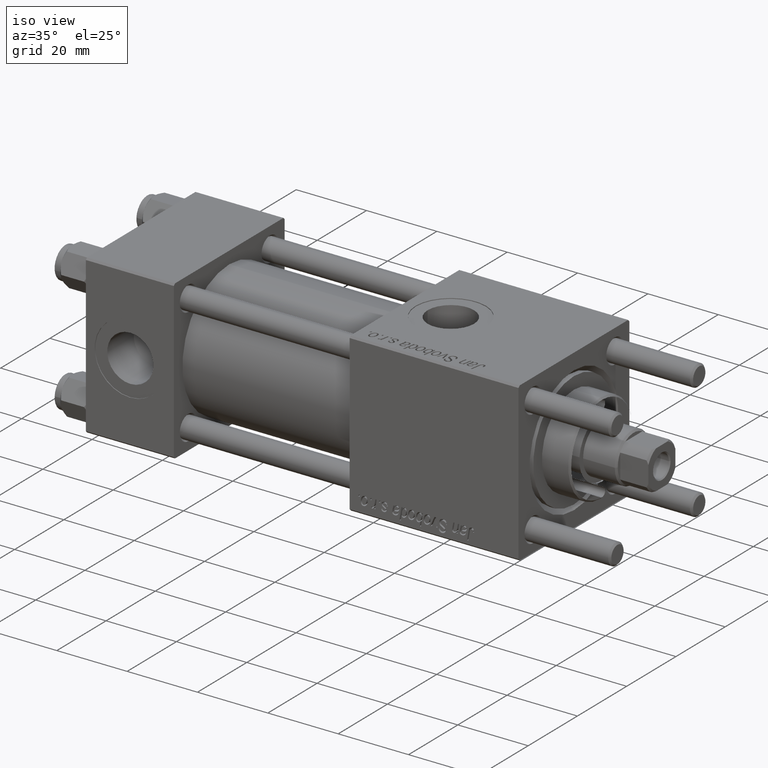
[diagram: clean part render]
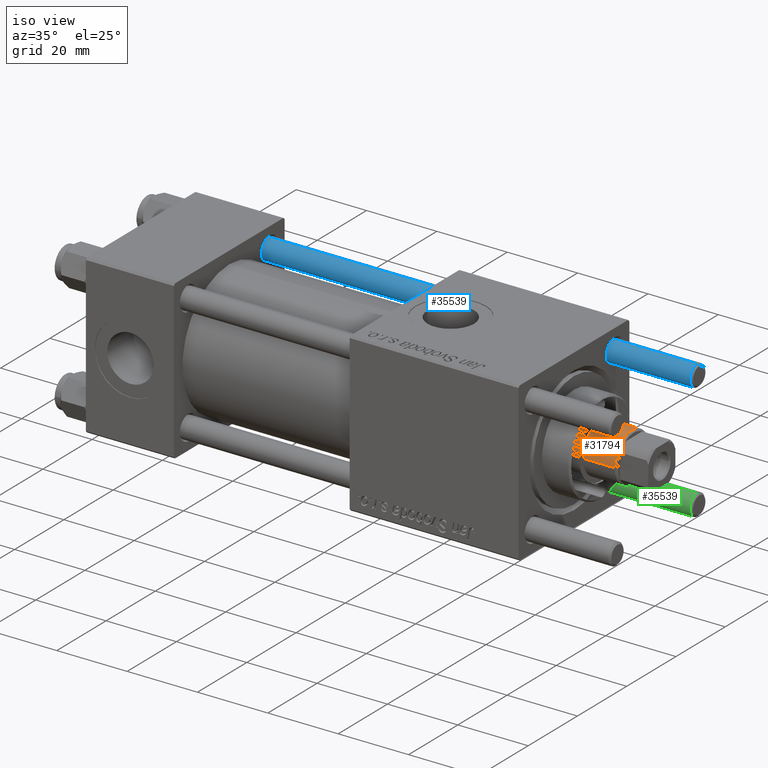
[diagram: same view with three faces highlighted in distinct colors, each labeled with its STEP entity id]
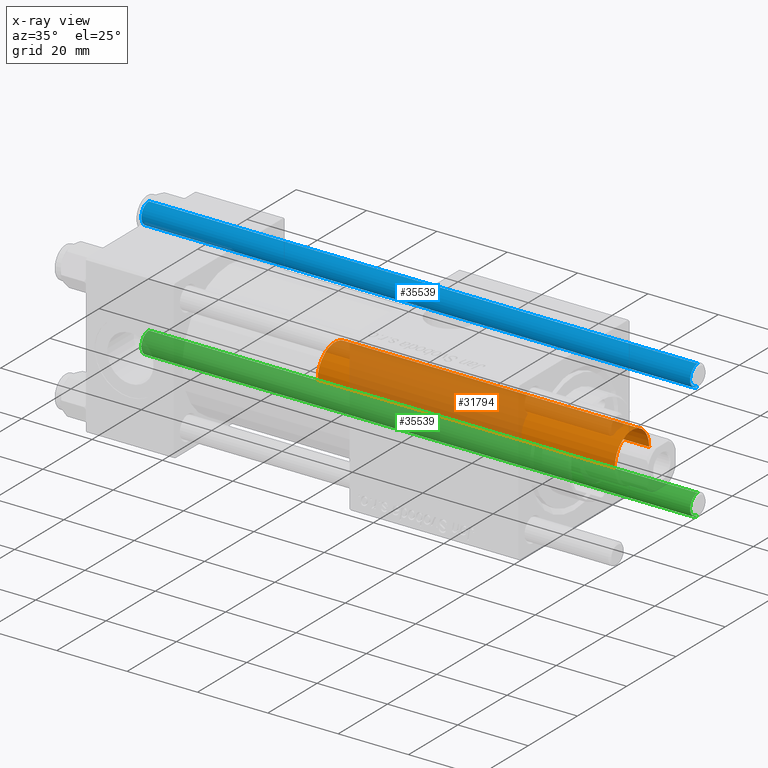
[diagram: x-ray of the same camera — body ghosted, the three highlighted faces saturated]
A machine part, iso view with three faces highlighted in distinct colors.
The next image is the same camera in x-ray (body ghosted, the three faces saturated) — at least one of them is partly hidden behind the body in this view.
Their STEP definitions:

[orange] entity #31794 — the highlighted cylindrical surface (edge-blend (fillet) strip) has radius 7 mm, axis along (-1, 0, 0).
#497 = CARTESIAN_POINT ( 'NONE',  ( -7.000000000000000000, 0.000000000000000000, 115.0000000000000000 ) ) ;
#505 = VERTEX_POINT ( 'NONE', #35135 ) ;
#1941 = EDGE_LOOP ( 'NONE', ( #24844, #38065, #30306, #26333 ) ) ;
#3813 = AXIS2_PLACEMENT_3D ( 'NONE', #14059, #14923, #36792 ) ;
#6283 = DIRECTION ( 'NONE',  ( 0.000000000000000000, 0.000000000000000000, -1.000000000000000000 ) ) ;
#8744 = FACE_OUTER_BOUND ( 'NONE', #1941, .T. ) ;
#13592 = AXIS2_PLACEMENT_3D ( 'NONE', #32490, #6283, #54658 ) ;
#14059 = CARTESIAN_POINT ( 'NONE',  ( 0.000000000000000000, 0.000000000000000000, 30.00000000000000000 ) ) ;
#14657 = VERTEX_POINT ( 'NONE', #45318 ) ;
#14923 = DIRECTION ( 'NONE',  ( 0.000000000000000000, 0.000000000000000000, 1.000000000000000000 ) ) ;
#16191 = DIRECTION ( 'NONE',  ( -0.000000000000000000, -0.000000000000000000, -1.000000000000000000 ) ) ;
#16796 = EDGE_CURVE ( 'NONE', #30099, #14657, #50002, .T. ) ;
#17673 = DIRECTION ( 'NONE',  ( -0.000000000000000000, -0.000000000000000000, -1.000000000000000000 ) ) ;
#17742 = CARTESIAN_POINT ( 'NONE',  ( -7.000000000000000000, 0.000000000000000000, 114.4999999999999858 ) ) ;
#21706 = CYLINDRICAL_SURFACE ( 'NONE', #39883, 7.000000000000000000 ) ;
#22277 = CARTESIAN_POINT ( 'NONE',  ( 0.000000000000000000, 0.000000000000000000, 115.0000000000000000 ) ) ;
#24844 = ORIENTED_EDGE ( 'NONE', *, *, #35174, .F. ) ;
#25125 = LINE ( 'NONE', #25972, #53774 ) ;
#25289 = EDGE_CURVE ( 'NONE', #14657, #25490, #31413, .T. ) ;
#25490 = VERTEX_POINT ( 'NONE', #51465 ) ;
#25972 = CARTESIAN_POINT ( 'NONE',  ( 7.000000000000000000, 8.572527594031473190E-16, 115.0000000000000000 ) ) ;
#26333 = ORIENTED_EDGE ( 'NONE', *, *, #25289, .T. ) ;
#30099 = VERTEX_POINT ( 'NONE', #17742 ) ;
#30306 = ORIENTED_EDGE ( 'NONE', *, *, #16796, .T. ) ;
#31057 = CIRCLE ( 'NONE', #13592, 7.000000000000000000 ) ;
#31413 = CIRCLE ( 'NONE', #3813, 7.000000000000000000 ) ;
#31794 = ADVANCED_FACE ( 'NONE', ( #8744 ), #21706, .T. ) ;
#32490 = CARTESIAN_POINT ( 'NONE',  ( 0.000000000000000000, 0.000000000000000000, 114.4999999999999858 ) ) ;
#35135 = CARTESIAN_POINT ( 'NONE',  ( 7.000000000000000000, 8.572527594031473190E-16, 114.4999999999999858 ) ) ;
#35174 = EDGE_CURVE ( 'NONE', #505, #25490, #25125, .T. ) ;
#35240 = DIRECTION ( 'NONE',  ( -1.000000000000000000, 0.000000000000000000, 0.000000000000000000 ) ) ;
#36460 = DIRECTION ( 'NONE',  ( -0.000000000000000000, -0.000000000000000000, -1.000000000000000000 ) ) ;
#36792 = DIRECTION ( 'NONE',  ( 1.000000000000000000, 0.000000000000000000, 0.000000000000000000 ) ) ;
#38065 = ORIENTED_EDGE ( 'NONE', *, *, #41967, .T. ) ;
#39570 = VECTOR ( 'NONE', #36460, 1000.000000000000000 ) ;
#39883 = AXIS2_PLACEMENT_3D ( 'NONE', #22277, #17673, #35240 ) ;
#41967 = EDGE_CURVE ( 'NONE', #505, #30099, #31057, .T. ) ;
#45318 = CARTESIAN_POINT ( 'NONE',  ( -7.000000000000000000, 0.000000000000000000, 30.00000000000000000 ) ) ;
#50002 = LINE ( 'NONE', #497, #39570 ) ;
#51465 = CARTESIAN_POINT ( 'NONE',  ( 7.000000000000000000, 8.572527594031473190E-16, 30.00000000000000000 ) ) ;
#53774 = VECTOR ( 'NONE', #16191, 1000.000000000000000 ) ;
#54658 = DIRECTION ( 'NONE',  ( 1.000000000000000000, 0.000000000000000000, 0.000000000000000000 ) ) ;

[blue] entity #35539 — the highlighted cylindrical surface (edge-blend (fillet) strip) has radius 3 mm, axis along (1, -0, -0).
#2471 = VERTEX_POINT ( 'NONE', #5266 ) ;
#2914 = AXIS2_PLACEMENT_3D ( 'NONE', #52972, #14371, #48656 ) ;
#3174 = DIRECTION ( 'NONE',  ( 1.000000000000000000, 0.000000000000000000, 0.000000000000000000 ) ) ;
#3822 = CIRCLE ( 'NONE', #2914, 3.000000000000000444 ) ;
#4395 = VECTOR ( 'NONE', #23351, 1000.000000000000000 ) ;
#4520 = CARTESIAN_POINT ( 'NONE',  ( 0.000000000000000000, 0.000000000000000000, 157.0000000000000000 ) ) ;
#5266 = CARTESIAN_POINT ( 'NONE',  ( 3.000000000000000444, 3.673940397442060361E-16, 0.4999999999999726885 ) ) ;
#5495 = CARTESIAN_POINT ( 'NONE',  ( 3.000000000000000444, 3.673940397442060361E-16, 157.0000000000000000 ) ) ;
#7872 = ORIENTED_EDGE ( 'NONE', *, *, #25305, .T. ) ;
#8824 = DIRECTION ( 'NONE',  ( -1.000000000000000000, 0.000000000000000000, 0.000000000000000000 ) ) ;
#8940 = VERTEX_POINT ( 'NONE', #44531 ) ;
#9122 = CARTESIAN_POINT ( 'NONE',  ( -3.000000000000000444, 0.000000000000000000, 0.4999999999999726885 ) ) ;
#9167 = LINE ( 'NONE', #31620, #54397 ) ;
#13168 = VERTEX_POINT ( 'NONE', #38518 ) ;
#13219 = CARTESIAN_POINT ( 'NONE',  ( 0.000000000000000000, 0.000000000000000000, 0.4999999999999726885 ) ) ;
#14371 = DIRECTION ( 'NONE',  ( 0.000000000000000000, 0.000000000000000000, -1.000000000000000000 ) ) ;
#17477 = CYLINDRICAL_SURFACE ( 'NONE', #33584, 3.000000000000000444 ) ;
#17500 = VERTEX_POINT ( 'NONE', #9122 ) ;
#23351 = DIRECTION ( 'NONE',  ( -0.000000000000000000, -0.000000000000000000, -1.000000000000000000 ) ) ;
#24547 = EDGE_LOOP ( 'NONE', ( #32930, #26529, #7872, #39797 ) ) ;
#25305 = EDGE_CURVE ( 'NONE', #8940, #17500, #9167, .T. ) ;
#26529 = ORIENTED_EDGE ( 'NONE', *, *, #56596, .T. ) ;
#26903 = CIRCLE ( 'NONE', #33304, 3.000000000000000444 ) ;
#28161 = EDGE_CURVE ( 'NONE', #17500, #2471, #26903, .T. ) ;
#30712 = DIRECTION ( 'NONE',  ( -0.000000000000000000, -0.000000000000000000, -1.000000000000000000 ) ) ;
#31620 = CARTESIAN_POINT ( 'NONE',  ( -3.000000000000000444, 0.000000000000000000, 157.0000000000000000 ) ) ;
#32930 = ORIENTED_EDGE ( 'NONE', *, *, #40586, .F. ) ;
#33304 = AXIS2_PLACEMENT_3D ( 'NONE', #13219, #47502, #3174 ) ;
#33584 = AXIS2_PLACEMENT_3D ( 'NONE', #4520, #30712, #8824 ) ;
#35539 = ADVANCED_FACE ( 'NONE', ( #56928 ), #17477, .T. ) ;
#38518 = CARTESIAN_POINT ( 'NONE',  ( 3.000000000000000444, 3.673940397442060361E-16, 156.5000000000000284 ) ) ;
#39797 = ORIENTED_EDGE ( 'NONE', *, *, #28161, .T. ) ;
#40586 = EDGE_CURVE ( 'NONE', #13168, #2471, #53297, .T. ) ;
#44531 = CARTESIAN_POINT ( 'NONE',  ( -3.000000000000000444, 0.000000000000000000, 156.5000000000000284 ) ) ;
#45171 = DIRECTION ( 'NONE',  ( -0.000000000000000000, -0.000000000000000000, -1.000000000000000000 ) ) ;
#47502 = DIRECTION ( 'NONE',  ( -0.000000000000000000, -0.000000000000000000, 1.000000000000000000 ) ) ;
#48656 = DIRECTION ( 'NONE',  ( 1.000000000000000000, 0.000000000000000000, 0.000000000000000000 ) ) ;
#52972 = CARTESIAN_POINT ( 'NONE',  ( 0.000000000000000000, 0.000000000000000000, 156.5000000000000284 ) ) ;
#53297 = LINE ( 'NONE', #5495, #4395 ) ;
#54397 = VECTOR ( 'NONE', #45171, 1000.000000000000000 ) ;
#56596 = EDGE_CURVE ( 'NONE', #13168, #8940, #3822, .T. ) ;
#56928 = FACE_OUTER_BOUND ( 'NONE', #24547, .T. ) ;

[green] entity #35539 — the highlighted cylindrical surface (edge-blend (fillet) strip) has radius 3 mm, axis along (-1, -0, 0).
#2471 = VERTEX_POINT ( 'NONE', #5266 ) ;
#2914 = AXIS2_PLACEMENT_3D ( 'NONE', #52972, #14371, #48656 ) ;
#3174 = DIRECTION ( 'NONE',  ( 1.000000000000000000, 0.000000000000000000, 0.000000000000000000 ) ) ;
#3822 = CIRCLE ( 'NONE', #2914, 3.000000000000000444 ) ;
#4395 = VECTOR ( 'NONE', #23351, 1000.000000000000000 ) ;
#4520 = CARTESIAN_POINT ( 'NONE',  ( 0.000000000000000000, 0.000000000000000000, 157.0000000000000000 ) ) ;
#5266 = CARTESIAN_POINT ( 'NONE',  ( 3.000000000000000444, 3.673940397442060361E-16, 0.4999999999999726885 ) ) ;
#5495 = CARTESIAN_POINT ( 'NONE',  ( 3.000000000000000444, 3.673940397442060361E-16, 157.0000000000000000 ) ) ;
#7872 = ORIENTED_EDGE ( 'NONE', *, *, #25305, .T. ) ;
#8824 = DIRECTION ( 'NONE',  ( -1.000000000000000000, 0.000000000000000000, 0.000000000000000000 ) ) ;
#8940 = VERTEX_POINT ( 'NONE', #44531 ) ;
#9122 = CARTESIAN_POINT ( 'NONE',  ( -3.000000000000000444, 0.000000000000000000, 0.4999999999999726885 ) ) ;
#9167 = LINE ( 'NONE', #31620, #54397 ) ;
#13168 = VERTEX_POINT ( 'NONE', #38518 ) ;
#13219 = CARTESIAN_POINT ( 'NONE',  ( 0.000000000000000000, 0.000000000000000000, 0.4999999999999726885 ) ) ;
#14371 = DIRECTION ( 'NONE',  ( 0.000000000000000000, 0.000000000000000000, -1.000000000000000000 ) ) ;
#17477 = CYLINDRICAL_SURFACE ( 'NONE', #33584, 3.000000000000000444 ) ;
#17500 = VERTEX_POINT ( 'NONE', #9122 ) ;
#23351 = DIRECTION ( 'NONE',  ( -0.000000000000000000, -0.000000000000000000, -1.000000000000000000 ) ) ;
#24547 = EDGE_LOOP ( 'NONE', ( #32930, #26529, #7872, #39797 ) ) ;
#25305 = EDGE_CURVE ( 'NONE', #8940, #17500, #9167, .T. ) ;
#26529 = ORIENTED_EDGE ( 'NONE', *, *, #56596, .T. ) ;
#26903 = CIRCLE ( 'NONE', #33304, 3.000000000000000444 ) ;
#28161 = EDGE_CURVE ( 'NONE', #17500, #2471, #26903, .T. ) ;
#30712 = DIRECTION ( 'NONE',  ( -0.000000000000000000, -0.000000000000000000, -1.000000000000000000 ) ) ;
#31620 = CARTESIAN_POINT ( 'NONE',  ( -3.000000000000000444, 0.000000000000000000, 157.0000000000000000 ) ) ;
#32930 = ORIENTED_EDGE ( 'NONE', *, *, #40586, .F. ) ;
#33304 = AXIS2_PLACEMENT_3D ( 'NONE', #13219, #47502, #3174 ) ;
#33584 = AXIS2_PLACEMENT_3D ( 'NONE', #4520, #30712, #8824 ) ;
#35539 = ADVANCED_FACE ( 'NONE', ( #56928 ), #17477, .T. ) ;
#38518 = CARTESIAN_POINT ( 'NONE',  ( 3.000000000000000444, 3.673940397442060361E-16, 156.5000000000000284 ) ) ;
#39797 = ORIENTED_EDGE ( 'NONE', *, *, #28161, .T. ) ;
#40586 = EDGE_CURVE ( 'NONE', #13168, #2471, #53297, .T. ) ;
#44531 = CARTESIAN_POINT ( 'NONE',  ( -3.000000000000000444, 0.000000000000000000, 156.5000000000000284 ) ) ;
#45171 = DIRECTION ( 'NONE',  ( -0.000000000000000000, -0.000000000000000000, -1.000000000000000000 ) ) ;
#47502 = DIRECTION ( 'NONE',  ( -0.000000000000000000, -0.000000000000000000, 1.000000000000000000 ) ) ;
#48656 = DIRECTION ( 'NONE',  ( 1.000000000000000000, 0.000000000000000000, 0.000000000000000000 ) ) ;
#52972 = CARTESIAN_POINT ( 'NONE',  ( 0.000000000000000000, 0.000000000000000000, 156.5000000000000284 ) ) ;
#53297 = LINE ( 'NONE', #5495, #4395 ) ;
#54397 = VECTOR ( 'NONE', #45171, 1000.000000000000000 ) ;
#56596 = EDGE_CURVE ( 'NONE', #13168, #8940, #3822, .T. ) ;
#56928 = FACE_OUTER_BOUND ( 'NONE', #24547, .T. ) ;